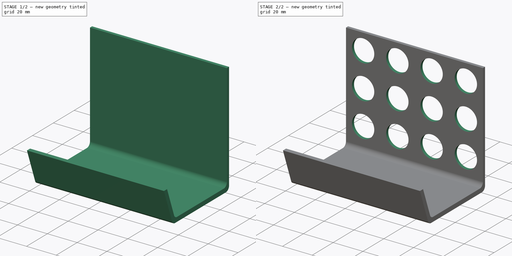
[diagram: build sequence overview — one tinted view per stage of 2, left to right]
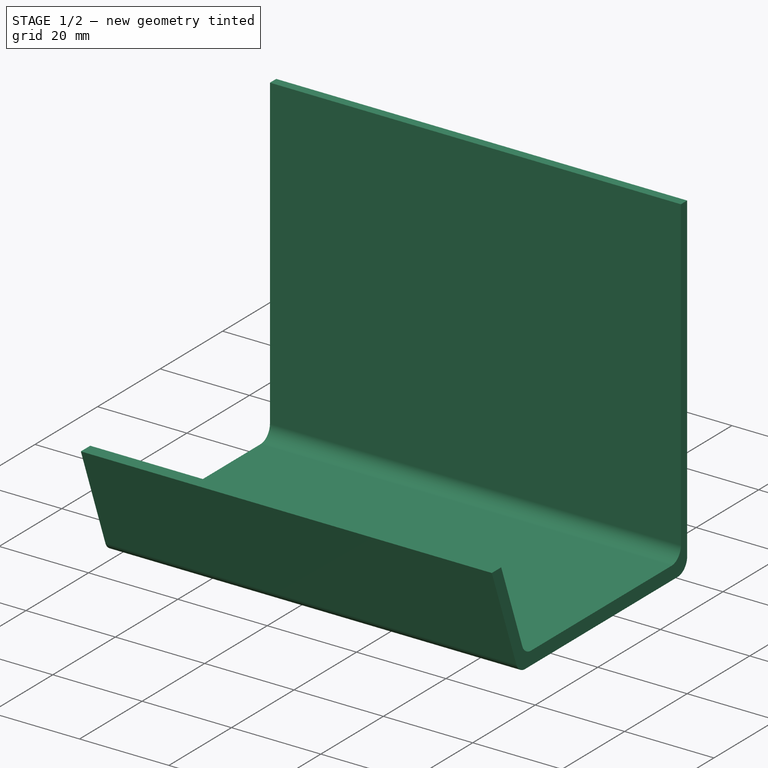
[diagram: stage 1 of 2 — iso view after this stage's code; geometry added in this stage tinted green]
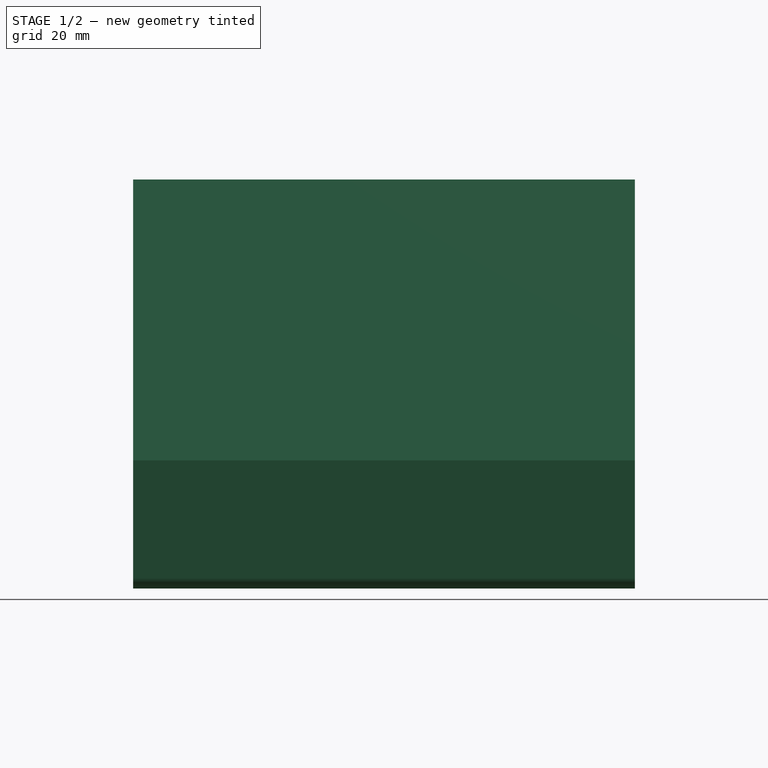
[diagram: stage 1 of 2 — front view after this stage's code; geometry added in this stage tinted green]
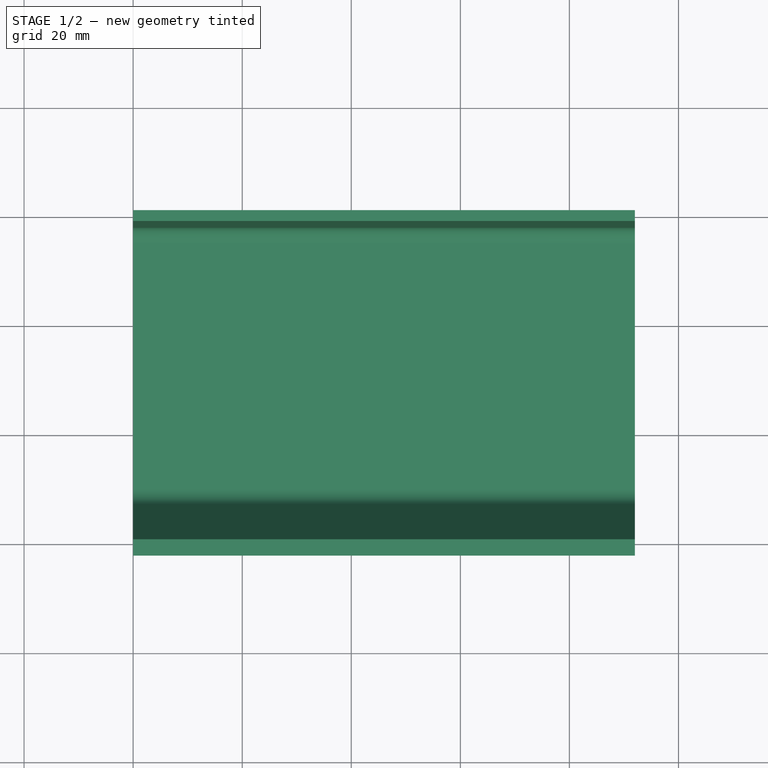
[diagram: stage 1 of 2 — top view after this stage's code; geometry added in this stage tinted green]
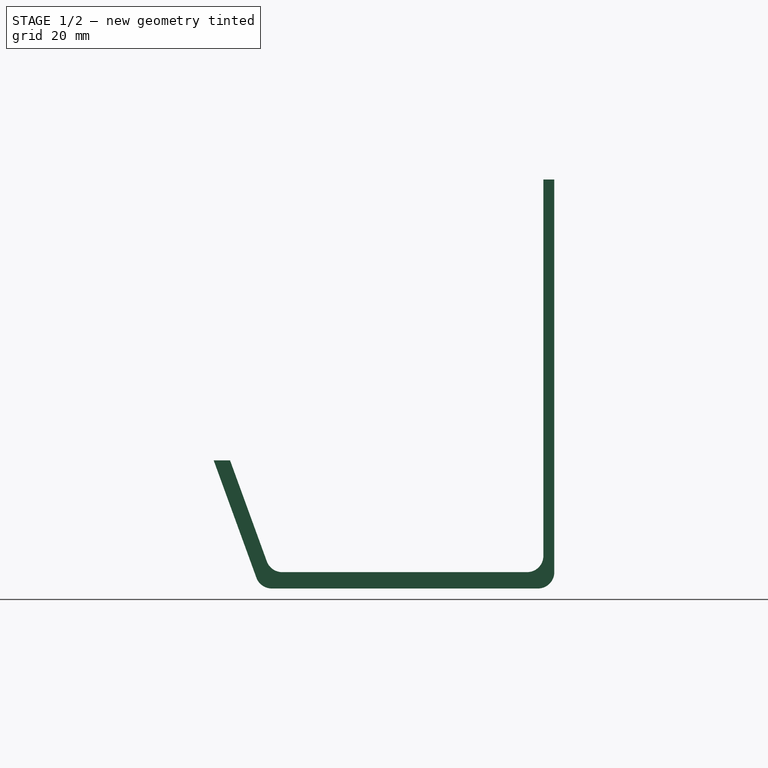
[diagram: stage 1 of 2 — right view after this stage's code; geometry added in this stage tinted green]
FCSTD DOCUMENT  (FreeCAD 1.0R39285 (Git))
Label: 01_Notebook_Holder_v2
License: All rights reserved
LicenseURL: https://en.wikipedia.org/wiki/All_rights_reserved
objects: Sketcher::SketchObject×2, PartDesign::Pad×1, PartDesign::Pocket×1, PartDesign::Body×1
note: 11 computed .brp shape members not serialized (recipe doc carries the construction recipe); baked Part::Feature solids carry a one-line shape summary decoded from their .brp

FEATURE [Sketcher::SketchObject] Sketch
  ArcFitTolerance = 1e-06
  AttachmentSupport = -> [YZ_Plane]
  FullyConstrained = true
  MakeInternals = false
  MapMode = 5
  Placement = pos=(0,0,0) rot=(0.57735,0.57735,0.57735;2.0944rad)
  sketch-geometry (16):
    g0: LineSegment StartX=0 StartY=75 StartZ=0 EndX=0 EndY=3 EndZ=0
    g1: LineSegment StartX=-3 StartY=0 StartZ=0 EndX=-51.8075 EndY=0 EndZ=0
    g2: LineSegment StartX=-54.6265 StartY=1.97394 StartZ=0 EndX=-62.4586 EndY=23.4923 EndZ=0
    g3: LineSegment StartX=0 StartY=75 StartZ=0 EndX=-2 EndY=75 EndZ=0
    g4: LineSegment StartX=-2 StartY=75 StartZ=0 EndX=-2 EndY=6 EndZ=0
    g5: LineSegment StartX=-5 StartY=3 StartZ=0 EndX=-49.8994 EndY=3 EndZ=0
    g6: LineSegment StartX=-52.7185 StartY=4.97394 StartZ=0 EndX=-59.4586 EndY=23.4923 EndZ=0
    g7: LineSegment StartX=-62.4586 StartY=23.4923 StartZ=0 EndX=-59.4586 EndY=23.4923 EndZ=0
    g8: ArcOfCircle CenterX=-51.8075 CenterY=3 CenterZ=0 NormalX=0 NormalY=0 NormalZ=1 AngleXU=0 Radius=3 StartAngle=3.49066 EndAngle=4.71239
    g9: GeomPoint [constr] X=-53.9081 Y=0 Z=0
    g10: ArcOfCircle CenterX=-49.8994 CenterY=6 CenterZ=0 NormalX=0 NormalY=0 NormalZ=1 AngleXU=0 Radius=3 StartAngle=3.49066 EndAngle=4.71239
    g11: GeomPoint [constr] X=-52 Y=3 Z=0
    g12: ArcOfCircle CenterX=-5 CenterY=6 CenterZ=0 NormalX=0 NormalY=0 NormalZ=1 AngleXU=0 Radius=3 StartAngle=4.71239 EndAngle=6.28319
    g13: GeomPoint [constr] X=-2 Y=3 Z=0
    g14: ArcOfCircle CenterX=-3 CenterY=3 CenterZ=0 NormalX=0 NormalY=0 NormalZ=1 AngleXU=0 Radius=3 StartAngle=4.71239 EndAngle=6.28319
    g15: GeomPoint [constr] X=0 Y=0 Z=0
  constraints (39):
    c: Distance(g0,g15) = 75
    c: Vertical(g0)
    c: Horizontal(g1)
    c: Distance(g2,g9) = 25
    c: Angle(g-1,g2) = 1.91986
    c: Distance(g3) = 2
    c: Horizontal(g3)
    c: Coincident(g3,g0)
    c: Distance(g4,g13) = 72
    c: Vertical(g4)
    c: Coincident(g4,g3)
    c: Distance(g13,g11) = 50
    c: Horizontal(g5)
    c: Parallel(g2,g6)
    c: Coincident(g7,g2)
    c: Horizontal(g7)
    c: Coincident(g6,g7)
    c: DistanceX(g2,g6) = 3
    c: Coincident(g15,g-1)
    c: PointOnObject(g9,g2)
    c: PointOnObject(g9,g1)
    c: Tangent(g2,g8) = 1.5708
    c: Tangent(g1,g8) = 1.5708
    c: PointOnObject(g11,g6)
    c: PointOnObject(g11,g5)
    c: Tangent(g6,g10) = 1.5708
    c: Tangent(g5,g10) = 1.5708
    c: Radius(g8) = 3
    c: Radius(g10) = 3
    c: PointOnObject(g13,g4)
    c: PointOnObject(g13,g5)
    c: Tangent(g4,g12) = 1.5708
    c: Tangent(g5,g12) = 1.5708
    c: PointOnObject(g15,g0)
    c: PointOnObject(g15,g1)
    c: Tangent(g0,g14) = 1.5708
    c: Tangent(g1,g14) = 1.5708
    c: Radius(g14) = 3
    c: Radius(g12) = 3
FEATURE [PartDesign::Pad] Pad
  Direction = (1,0,0)
  Length = 92
  Length2 = 10
  Placement = pos=(0,0,0) rot=(1,1,1;2.0944rad)
  Profile = -> Sketch
  ReferenceAxis = -> Sketch [N_Axis]
  Refine = true
  Suppressed = false
  Type = 0
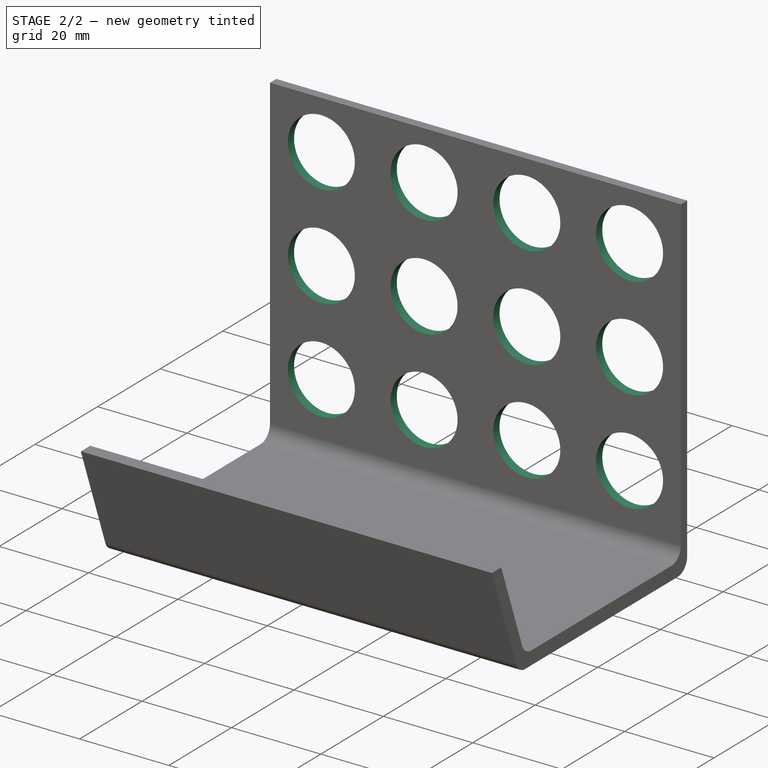
[diagram: stage 2 of 2 — iso view after this stage's code; geometry added in this stage tinted green]
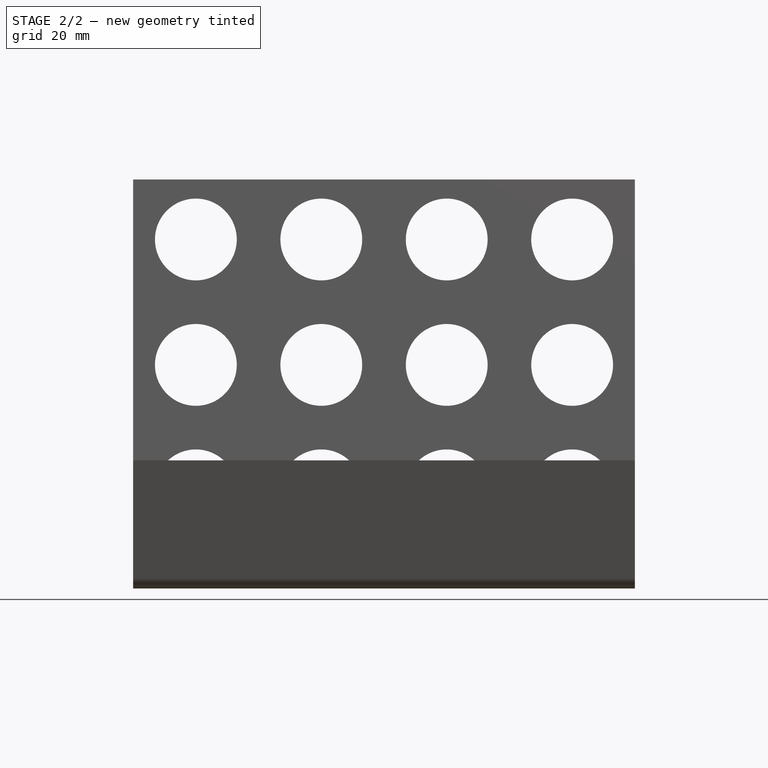
[diagram: stage 2 of 2 — front view after this stage's code; geometry added in this stage tinted green]
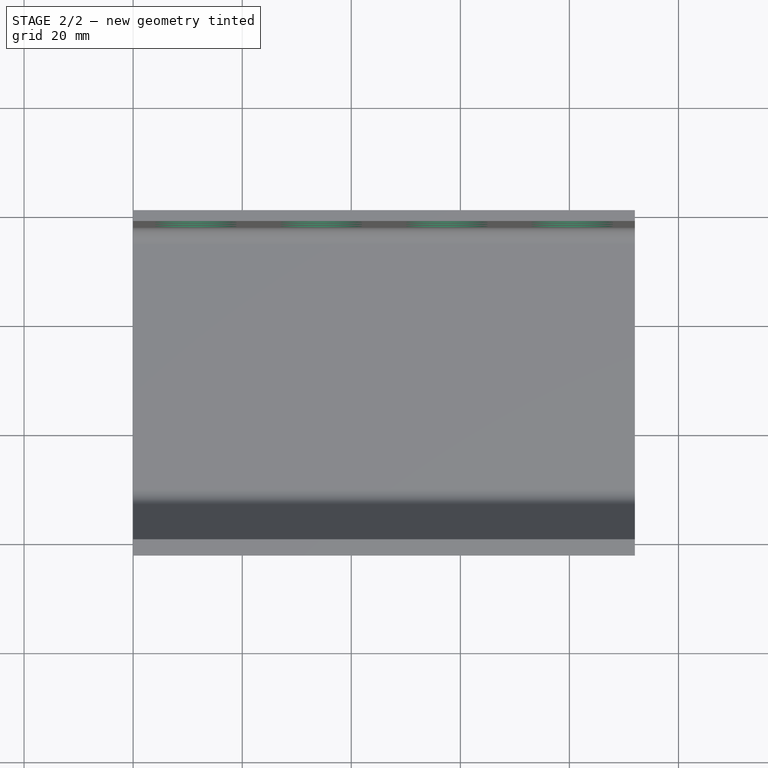
[diagram: stage 2 of 2 — top view after this stage's code; geometry added in this stage tinted green]
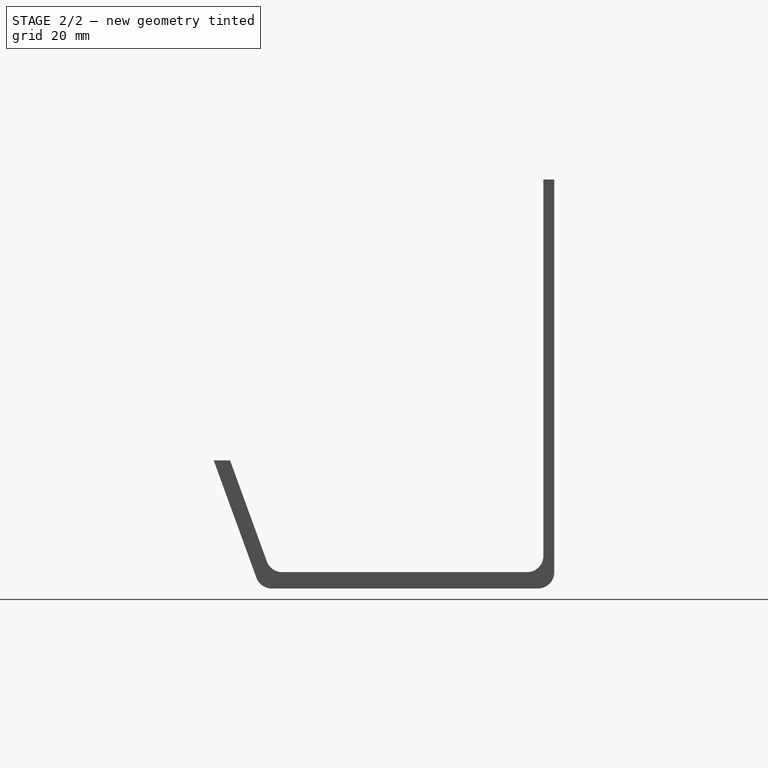
[diagram: stage 2 of 2 — right view after this stage's code; geometry added in this stage tinted green]
FEATURE [Sketcher::SketchObject] Sketch001
  ArcFitTolerance = 1e-06
  AttachmentSupport = -> [Pad]
  ExternalGeometry = -> [Pad]
  FullyConstrained = true
  MakeInternals = false
  MapMode = 5
  Placement = pos=(-4e-16,-2,2e-16) rot=(0.57735,0.57735,-0.57735;2.0944rad)
  sketch-geometry (29):
    g0: Circle CenterX=-64 CenterY=11.5 CenterZ=0 NormalX=0 NormalY=0 NormalZ=1 AngleXU=0 Radius=7.5
    g1: Circle CenterX=-41 CenterY=11.5 CenterZ=0 NormalX=0 NormalY=0 NormalZ=1 AngleXU=0 Radius=7.5
    g2: Circle CenterX=-18 CenterY=11.5 CenterZ=0 NormalX=0 NormalY=0 NormalZ=1 AngleXU=0 Radius=7.5
    g3: Circle CenterX=-64 CenterY=34.5 CenterZ=0 NormalX=0 NormalY=0 NormalZ=1 AngleXU=0 Radius=7.5
    g4: Circle CenterX=-41 CenterY=34.5 CenterZ=0 NormalX=0 NormalY=0 NormalZ=1 AngleXU=0 Radius=7.5
    g5: Circle CenterX=-18 CenterY=34.5 CenterZ=0 NormalX=0 NormalY=0 NormalZ=1 AngleXU=0 Radius=7.5
    g6: Circle CenterX=-64 CenterY=57.5 CenterZ=0 NormalX=0 NormalY=0 NormalZ=1 AngleXU=0 Radius=7.5
    g7: Circle CenterX=-41 CenterY=57.5 CenterZ=0 NormalX=0 NormalY=0 NormalZ=1 AngleXU=0 Radius=7.5
    g8: Circle CenterX=-18 CenterY=57.5 CenterZ=0 NormalX=0 NormalY=0 NormalZ=1 AngleXU=0 Radius=7.5
    g9: Circle CenterX=-64 CenterY=80.5 CenterZ=0 NormalX=0 NormalY=0 NormalZ=1 AngleXU=0 Radius=7.5
    g10: Circle CenterX=-41 CenterY=80.5 CenterZ=0 NormalX=0 NormalY=0 NormalZ=1 AngleXU=0 Radius=7.5
    g11: Circle CenterX=-18 CenterY=80.5 CenterZ=0 NormalX=0 NormalY=0 NormalZ=1 AngleXU=0 Radius=7.5
    g12: LineSegment [constr] StartX=-64 StartY=34.5 StartZ=0 EndX=-64 EndY=11.5 EndZ=0
    g13: LineSegment [constr] StartX=-41 StartY=34.5 StartZ=0 EndX=-41 EndY=11.5 EndZ=0
    g14: LineSegment [constr] StartX=-18 StartY=34.5 StartZ=0 EndX=-18 EndY=11.5 EndZ=0
    g15: LineSegment [constr] StartX=-64 StartY=11.5 StartZ=0 EndX=-41 EndY=11.5 EndZ=0
    g16: LineSegment [constr] StartX=-41 StartY=11.5 StartZ=0 EndX=-18 EndY=11.5 EndZ=0
    g17: LineSegment [constr] StartX=-64 StartY=34.5 StartZ=0 EndX=-41 EndY=34.5 EndZ=0
    g18: LineSegment [constr] StartX=-41 StartY=34.5 StartZ=0 EndX=-18 EndY=34.5 EndZ=0
    g19: LineSegment [constr] StartX=-64 StartY=34.5 StartZ=0 EndX=-64 EndY=57.5 EndZ=0
    g20: LineSegment [constr] StartX=-41 StartY=34.5 StartZ=0 EndX=-41 EndY=57.5 EndZ=0
    g21: LineSegment [constr] StartX=-18 StartY=34.5 StartZ=0 EndX=-18 EndY=57.5 EndZ=0
    g22: LineSegment [constr] StartX=-64 StartY=57.5 StartZ=0 EndX=-41 EndY=57.5 EndZ=0
    g23: LineSegment [constr] StartX=-41 StartY=57.5 StartZ=0 EndX=-18 EndY=57.5 EndZ=0
    g24: LineSegment [constr] StartX=-64 StartY=80.5 StartZ=0 EndX=-41 EndY=80.5 EndZ=0
    g25: LineSegment [constr] StartX=-41 StartY=80.5 StartZ=0 EndX=-18 EndY=80.5 EndZ=0
    g26: LineSegment [constr] StartX=-64 StartY=80.5 StartZ=0 EndX=-64 EndY=57.5 EndZ=0
    g27: LineSegment [constr] StartX=-41 StartY=80.5 StartZ=0 EndX=-41 EndY=57.5 EndZ=0
    g28: LineSegment [constr] StartX=-18 StartY=80.5 StartZ=0 EndX=-18 EndY=57.5 EndZ=0
  constraints (71):
    c: Diameter(g0) = 15
    c: Equal(g0,g1)
    c: Equal(g1,g2)
    c: Equal(g2,g3)
    c: Equal(g3,g4)
    c: Equal(g4,g5)
    c: Equal(g5,g6)
    c: Equal(g6,g7)
    c: Equal(g7,g8)
    c: Equal(g8,g9)
    c: Equal(g9,g10)
    c: Equal(g10,g11)
    c: DistanceY(g-4,g0) = 11.5
    c: DistanceX(g-4,g0) = 11
    c: Coincident(g12,g3)
    c: Coincident(g12,g0)
    c: Vertical(g12)
    c: Coincident(g13,g4)
    c: Coincident(g13,g1)
    c: Coincident(g14,g5)
    c: Coincident(g14,g2)
    c: Coincident(g15,g0)
    c: Coincident(g15,g1)
    c: Coincident(g16,g1)
    c: Coincident(g16,g2)
    c: Coincident(g17,g3)
    c: Coincident(g17,g4)
    c: Coincident(g18,g4)
    c: Coincident(g18,g5)
    c: Horizontal(g18)
    c: Coincident(g19,g3)
    c: Coincident(g19,g6)
    c: Coincident(g20,g4)
    c: Coincident(g21,g5)
    c: Coincident(g21,g8)
    c: Coincident(g22,g6)
    c: Coincident(g22,g7)
    c: Horizontal(g22)
    c: Coincident(g23,g7)
    c: Coincident(g23,g8)
    c: Coincident(g24,g9)
    c: Coincident(g24,g10)
    c: Horizontal(g24)
    c: Coincident(g25,g10)
    c: Coincident(g25,g11)
    c: Coincident(g26,g9)
    c: Coincident(g26,g6)
    c: Coincident(g27,g10)
    c: Coincident(g27,g7)
    c: Coincident(g28,g11)
    c: Coincident(g28,g8)
    c: Vertical(g26)
    c: Vertical(g27)
    c: Vertical(g28)
    c: Vertical(g20)
    c: Vertical(g21)
    c: Vertical(g13)
    c: Horizontal(g15)
    c: Horizontal(g17)
    c: Distance(g12) = 23
    c: Equal(g12,g19)
    c: Equal(g19,g26)
    c: Equal(g26,g24)
    c: Equal(g25,g28)
    c: Equal(g28,g27)
    c: Equal(g22,g23)
    c: Equal(g23,g20)
    c: Equal(g20,g21)
    c: Equal(g21,g17)
    c: Equal(g17,g18)
    c: Equal(g18,g16)
FEATURE [PartDesign::Pocket] Pocket
  BaseFeature = -> Pad
  Direction = (0,1,0)
  Length = 2
  Length2 = 5
  Placement = pos=(0,0,0) rot=(1,1,1;2.0944rad)
  Profile = -> Sketch001
  ReferenceAxis = -> Sketch001 [N_Axis]
  Refine = true
  Suppressed = false
  Type = 0
FEATURE [PartDesign::Body] Body
  AllowCompound = false
  Group = -> [Sketch,Pad,Sketch001,Pocket]
  Origin = -> Origin
  Tip = -> Pocket
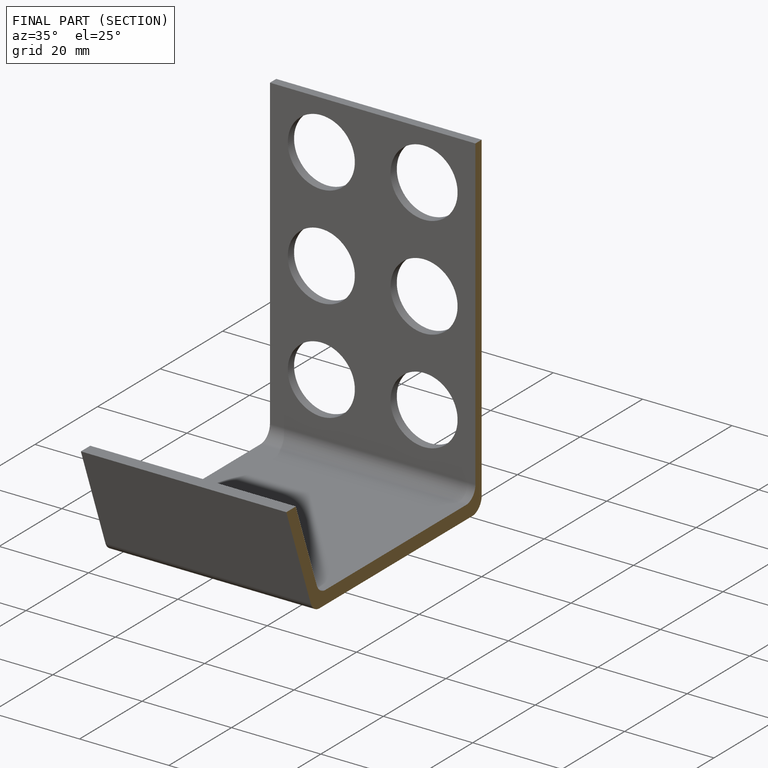
[diagram: finished part — half-section view (interior)]
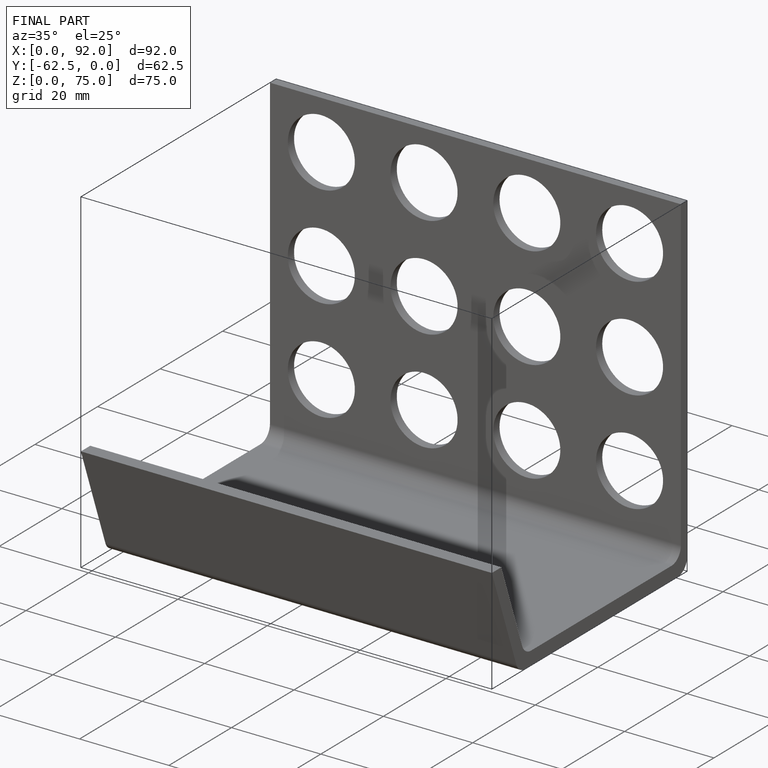
[diagram: finished part — iso view with bounding-box wireframe]
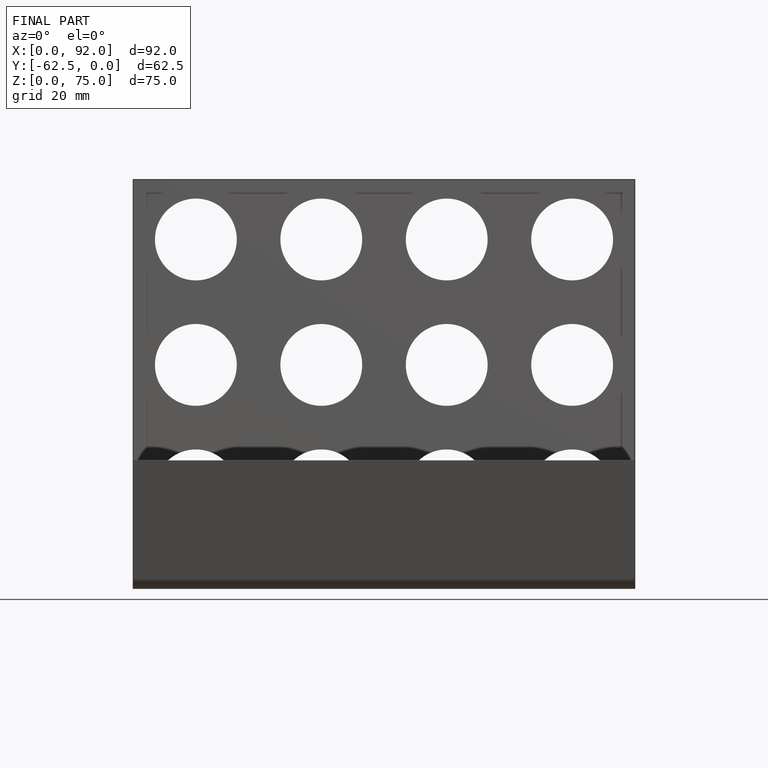
[diagram: finished part — front view with bounding-box wireframe]
